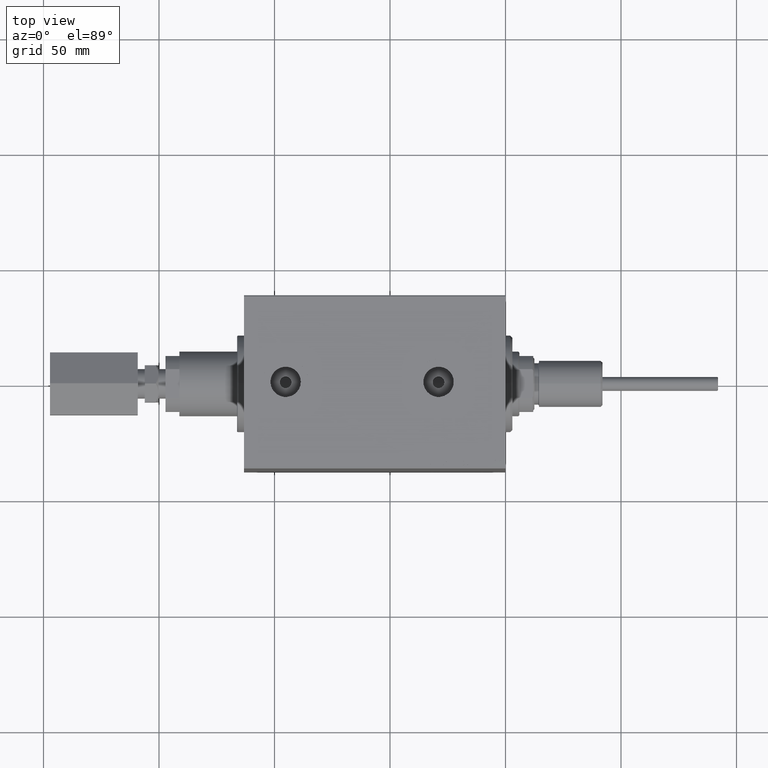
[diagram: clean part render]
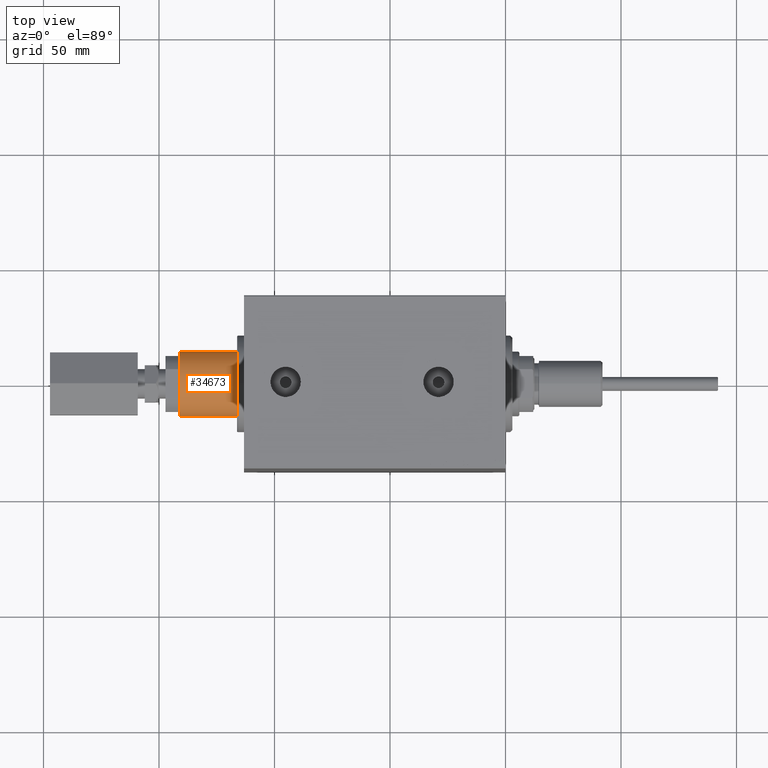
[diagram: same view with one face highlighted and labeled with its STEP entity id]
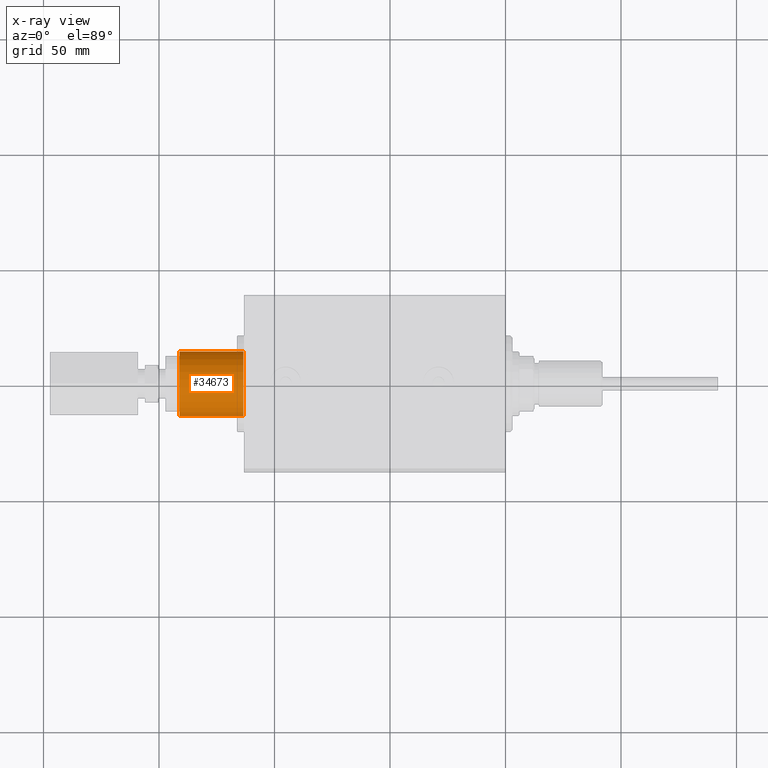
[diagram: x-ray of the same camera — body ghosted, the highlighted face saturated]
A machine part, top view. The second image highlights one B-rep face of the part: STEP entity #34673.
The next image is the same camera in x-ray: the body ghosted, the highlighted face saturated — about 0% of this face is hidden behind the body in this view.
In plain terms, the highlighted cylindrical surface (edge-blend (fillet) strip) has radius 14 mm, axis along (1, 0, 0).
Its self-contained STEP definition (entity closure, byte-faithful):
#1192 = ORIENTED_EDGE ( 'NONE', *, *, #21990, .F. ) ;
#2087 = EDGE_LOOP ( 'NONE', ( #36560, #1192, #13787, #31628 ) ) ;
#2454 = CIRCLE ( 'NONE', #11206, 13.99999999999999822 ) ;
#2866 = CARTESIAN_POINT ( 'NONE',  ( 28.00000000000000000, 0.000000000000000000, 13.99999999999999822 ) ) ;
#3918 = DIRECTION ( 'NONE',  ( 0.000000000000000000, 0.000000000000000000, 1.000000000000000000 ) ) ;
#4333 = CARTESIAN_POINT ( 'NONE',  ( 0.3000000000000120348, 0.000000000000000000, 13.99999999999999822 ) ) ;
#4643 = FACE_OUTER_BOUND ( 'NONE', #2087, .T. ) ;
#4759 = DIRECTION ( 'NONE',  ( 1.000000000000000000, 0.000000000000000000, 0.000000000000000000 ) ) ;
#5750 = VERTEX_POINT ( 'NONE', #9361 ) ;
#7856 = CARTESIAN_POINT ( 'NONE',  ( 28.00000000000000000, 0.000000000000000000, 0.000000000000000000 ) ) ;
#8340 = DIRECTION ( 'NONE',  ( -1.000000000000000000, -0.000000000000000000, -0.000000000000000000 ) ) ;
#9080 = CARTESIAN_POINT ( 'NONE',  ( 28.00000000000000000, 1.714505518806294441E-15, -13.99999999999999822 ) ) ;
#9361 = CARTESIAN_POINT ( 'NONE',  ( 0.3000000000000120348, 1.714505518806294441E-15, -13.99999999999999822 ) ) ;
#9545 = VECTOR ( 'NONE', #44273, 1000.000000000000000 ) ;
#9991 = VERTEX_POINT ( 'NONE', #18826 ) ;
#11206 = AXIS2_PLACEMENT_3D ( 'NONE', #29052, #14513, #13780 ) ;
#13780 = DIRECTION ( 'NONE',  ( 0.000000000000000000, 0.000000000000000000, -1.000000000000000000 ) ) ;
#13787 = ORIENTED_EDGE ( 'NONE', *, *, #43560, .T. ) ;
#14513 = DIRECTION ( 'NONE',  ( 1.000000000000000000, -0.000000000000000000, -0.000000000000000000 ) ) ;
#18162 = EDGE_CURVE ( 'NONE', #9991, #5750, #24108, .T. ) ;
#18826 = CARTESIAN_POINT ( 'NONE',  ( 28.00000000000000000, 1.714505518806294441E-15, -13.99999999999999822 ) ) ;
#20191 = DIRECTION ( 'NONE',  ( -1.000000000000000000, -0.000000000000000000, -0.000000000000000000 ) ) ;
#21990 = EDGE_CURVE ( 'NONE', #33092, #9991, #44748, .T. ) ;
#23042 = AXIS2_PLACEMENT_3D ( 'NONE', #7856, #8340, #3918 ) ;
#23619 = CYLINDRICAL_SURFACE ( 'NONE', #23042, 13.99999999999999822 ) ;
#24108 = LINE ( 'NONE', #9080, #27316 ) ;
#26153 = VERTEX_POINT ( 'NONE', #4333 ) ;
#27316 = VECTOR ( 'NONE', #20191, 1000.000000000000000 ) ;
#28494 = LINE ( 'NONE', #2866, #9545 ) ;
#29052 = CARTESIAN_POINT ( 'NONE',  ( 0.3000000000000120348, 0.000000000000000000, 0.000000000000000000 ) ) ;
#29773 = AXIS2_PLACEMENT_3D ( 'NONE', #30891, #4759, #45444 ) ;
#30865 = EDGE_CURVE ( 'NONE', #26153, #5750, #2454, .T. ) ;
#30891 = CARTESIAN_POINT ( 'NONE',  ( 28.00000000000000000, 0.000000000000000000, 0.000000000000000000 ) ) ;
#31628 = ORIENTED_EDGE ( 'NONE', *, *, #30865, .T. ) ;
#33092 = VERTEX_POINT ( 'NONE', #43550 ) ;
#34673 = ADVANCED_FACE ( 'NONE', ( #4643 ), #23619, .T. ) ;
#36560 = ORIENTED_EDGE ( 'NONE', *, *, #18162, .F. ) ;
#43550 = CARTESIAN_POINT ( 'NONE',  ( 28.00000000000000000, 0.000000000000000000, 13.99999999999999822 ) ) ;
#43560 = EDGE_CURVE ( 'NONE', #33092, #26153, #28494, .T. ) ;
#44273 = DIRECTION ( 'NONE',  ( -1.000000000000000000, -0.000000000000000000, -0.000000000000000000 ) ) ;
#44748 = CIRCLE ( 'NONE', #29773, 13.99999999999999822 ) ;
#45444 = DIRECTION ( 'NONE',  ( 0.000000000000000000, 0.000000000000000000, -1.000000000000000000 ) ) ;